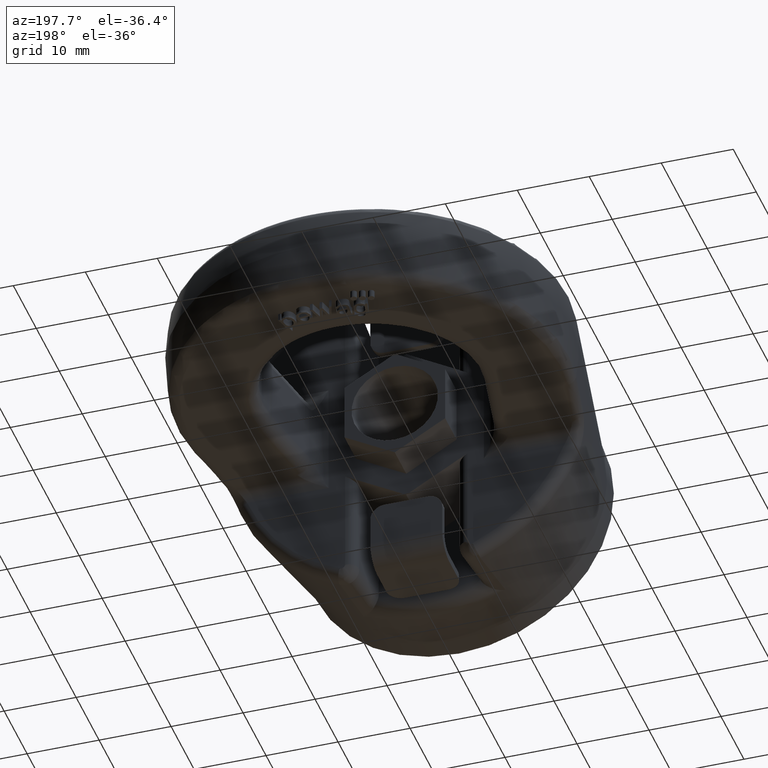
[diagram: clean part render]
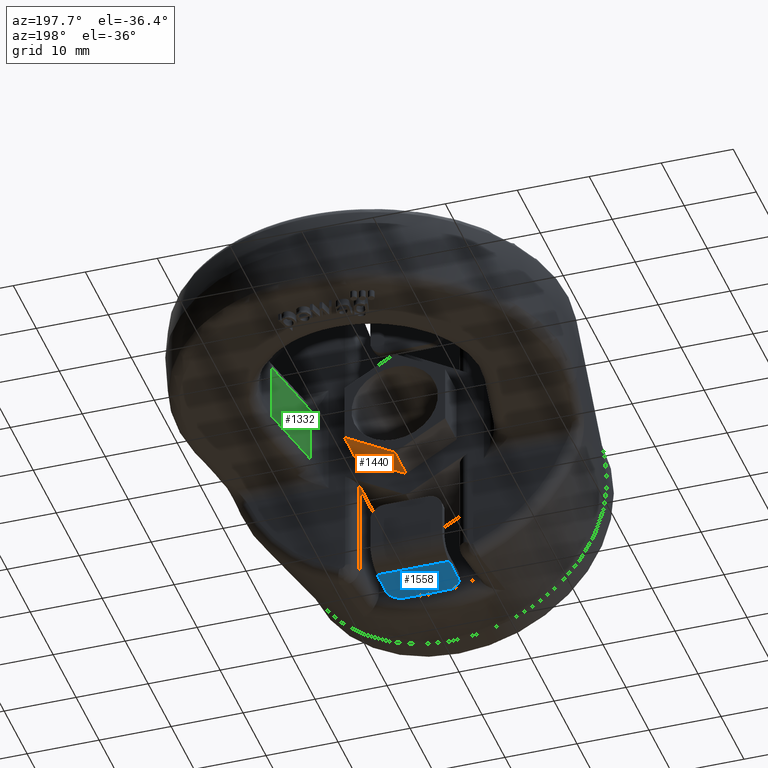
[diagram: same view with three faces highlighted in distinct colors, each labeled with its STEP entity id]
A machine part, auxiliary view with three faces highlighted in distinct colors.
Their STEP definitions:

[orange] entity #1440 — the highlighted planar face has unit normal (0.5, 0, -0.866).
#1207=FACE_OUTER_BOUND('',#1974,.T.);
#1440=ADVANCED_FACE('',(#1207),#1619,.T.);
#1619=PLANE('',#5243);
#1974=EDGE_LOOP('',(#3331,#3332,#3333,#3334));
#2156=LINE('',#6852,#2426);
#2167=LINE('',#6893,#2437);
#2177=LINE('',#6915,#2447);
#2269=LINE('',#8452,#2567);
#2426=VECTOR('',#5493,1.);
#2437=VECTOR('',#5522,1.);
#2447=VECTOR('',#5542,1.);
#2567=VECTOR('',#5854,1.);
#3331=ORIENTED_EDGE('',*,*,#4373,.F.);
#3332=ORIENTED_EDGE('',*,*,#4620,.T.);
#3333=ORIENTED_EDGE('',*,*,#4400,.F.);
#3334=ORIENTED_EDGE('',*,*,#4389,.F.);
#3985=VERTEX_POINT('',#6853);
#3986=VERTEX_POINT('',#6854);
#3999=VERTEX_POINT('',#6894);
#4005=VERTEX_POINT('',#6914);
#4373=EDGE_CURVE('',#3985,#3986,#2156,.T.);
#4389=EDGE_CURVE('',#3986,#3999,#2167,.T.);
#4400=EDGE_CURVE('',#3999,#4005,#2177,.T.);
#4620=EDGE_CURVE('',#3985,#4005,#2269,.T.);
#5243=AXIS2_PLACEMENT_3D('',#8453,#5855,#5856);
#5493=DIRECTION('',(0.866025403784438,0.,0.500000000000001));
#5522=DIRECTION('',(0.,1.,0.));
#5542=DIRECTION('',(-0.866025403784438,0.,-0.500000000000001));
#5854=DIRECTION('',(0.,1.,0.));
#5855=DIRECTION('',(0.500000000000001,0.,-0.866025403784438));
#5856=DIRECTION('',(-0.866025403784438,0.,-0.500000000000001));
#6852=CARTESIAN_POINT('',(7.00000000000001,23.,-4.04145188432736));
#6853=CARTESIAN_POINT('',(1.89375219623898E-14,23.,-8.08290376865475));
#6854=CARTESIAN_POINT('',(7.00000000000001,23.,-4.04145188432737));
#6893=CARTESIAN_POINT('',(7.00000000000001,0.5,-4.04145188432736));
#6894=CARTESIAN_POINT('',(7.00000000000001,28.,-4.04145188432736));
#6914=CARTESIAN_POINT('',(1.89375219623898E-14,28.,-8.08290376865475));
#6915=CARTESIAN_POINT('',(7.00000000000001,28.,-4.04145188432736));
#8452=CARTESIAN_POINT('',(1.89375219623898E-14,0.5,-8.08290376865475));
#8453=CARTESIAN_POINT('',(7.00000000000001,0.5,-4.04145188432736));

[blue] entity #1558 — the highlighted planar face has unit normal (-0, 0, 1).
#1318=FACE_OUTER_BOUND('',#2099,.T.);
#1558=ADVANCED_FACE('',(#1318),#1675,.F.);
#1675=PLANE('',#5370);
#1768=CIRCLE('',#5368,2.);
#1769=CIRCLE('',#5369,2.);
#2099=EDGE_LOOP('',(#3850,#3851,#3852,#3853,#3854,#3855));
#2350=LINE('',#9734,#2676);
#2358=LINE('',#9756,#2684);
#2362=LINE('',#9765,#2688);
#2373=LINE('',#9799,#2699);
#2676=VECTOR('',#6175,1.);
#2684=VECTOR('',#6189,1.);
#2688=VECTOR('',#6195,1.);
#2699=VECTOR('',#6234,1.);
#3850=ORIENTED_EDGE('',*,*,#4816,.F.);
#3851=ORIENTED_EDGE('',*,*,#4840,.T.);
#3852=ORIENTED_EDGE('',*,*,#4806,.F.);
#3853=ORIENTED_EDGE('',*,*,#4839,.T.);
#3854=ORIENTED_EDGE('',*,*,#4820,.T.);
#3855=ORIENTED_EDGE('',*,*,#4841,.T.);
#4232=VERTEX_POINT('',#9735);
#4233=VERTEX_POINT('',#9736);
#4242=VERTEX_POINT('',#9755);
#4243=VERTEX_POINT('',#9757);
#4246=VERTEX_POINT('',#9764);
#4247=VERTEX_POINT('',#9766);
#4806=EDGE_CURVE('',#4232,#4233,#2350,.T.);
#4816=EDGE_CURVE('',#4242,#4243,#2358,.T.);
#4820=EDGE_CURVE('',#4247,#4246,#2362,.T.);
#4839=EDGE_CURVE('',#4232,#4247,#2373,.T.);
#4840=EDGE_CURVE('',#4242,#4233,#1768,.T.);
#4841=EDGE_CURVE('',#4246,#4243,#1769,.T.);
#5368=AXIS2_PLACEMENT_3D('',#9801,#6237,#6238);
#5369=AXIS2_PLACEMENT_3D('',#9802,#6239,#6240);
#5370=AXIS2_PLACEMENT_3D('',#9803,#6241,#6242);
#6175=DIRECTION('',(0.,-1.,0.));
#6189=DIRECTION('',(1.,0.,2.34291072916505E-15));
#6195=DIRECTION('',(0.,-1.,0.));
#6234=DIRECTION('',(1.,0.,2.34291072916505E-15));
#6237=DIRECTION('',(2.34291072916505E-15,0.,-1.));
#6238=DIRECTION('',(1.,0.,1.73472347597681E-15));
#6239=DIRECTION('',(2.34291072916505E-15,0.,-1.));
#6240=DIRECTION('',(1.,0.,1.73472347597681E-15));
#6241=DIRECTION('',(-2.34291072916505E-15,0.,1.));
#6242=DIRECTION('',(1.,0.,2.34187669256869E-15));
#9734=CARTESIAN_POINT('',(-4.99999999999995,20.,-21.5));
#9735=CARTESIAN_POINT('',(-4.99999999999995,20.,-21.5));
#9736=CARTESIAN_POINT('',(-4.99999999999995,16.,-21.5));
#9755=CARTESIAN_POINT('',(-2.99999999999995,14.,-21.5));
#9756=CARTESIAN_POINT('',(-4.99999999999995,14.,-21.5));
#9757=CARTESIAN_POINT('',(3.00000000000005,14.,-21.5));
#9764=CARTESIAN_POINT('',(5.00000000000005,16.,-21.5));
#9765=CARTESIAN_POINT('',(5.00000000000005,20.,-21.5));
#9766=CARTESIAN_POINT('',(5.00000000000005,20.,-21.5));
#9799=CARTESIAN_POINT('',(-4.99999999999995,20.,-21.5));
#9801=CARTESIAN_POINT('',(-2.99999999999995,16.,-21.5));
#9802=CARTESIAN_POINT('',(3.00000000000005,16.,-21.5));
#9803=CARTESIAN_POINT('',(-4.99999999999995,20.,-21.5));

[green] entity #1332 — the highlighted planar face has unit normal (-0.9828, 0.1846, 0).
#1050=ELLIPSE('',#5135,4.06996773469739,4.);
#1051=ELLIPSE('',#5136,4.06996773469739,4.);
#1111=FACE_OUTER_BOUND('',#1847,.T.);
#1332=ADVANCED_FACE('',(#1111),#1569,.T.);
#1569=PLANE('',#5137);
#1847=EDGE_LOOP('',(#2831,#2832,#2833,#2834,#2835,#2836));
#2137=LINE('',#6717,#2407);
#2164=LINE('',#6877,#2434);
#2165=LINE('',#6882,#2435);
#2166=LINE('',#6883,#2436);
#2407=VECTOR('',#5454,1.);
#2434=VECTOR('',#5505,1.);
#2435=VECTOR('',#5508,1.);
#2436=VECTOR('',#5509,1.);
#2831=ORIENTED_EDGE('',*,*,#4382,.T.);
#2832=ORIENTED_EDGE('',*,*,#4383,.T.);
#2833=ORIENTED_EDGE('',*,*,#4384,.T.);
#2834=ORIENTED_EDGE('',*,*,#4342,.F.);
#2835=ORIENTED_EDGE('',*,*,#4385,.T.);
#2836=ORIENTED_EDGE('',*,*,#4386,.T.);
#3955=VERTEX_POINT('',#6718);
#3956=VERTEX_POINT('',#6719);
#3993=VERTEX_POINT('',#6878);
#3994=VERTEX_POINT('',#6879);
#3995=VERTEX_POINT('',#6881);
#3996=VERTEX_POINT('',#6884);
#4342=EDGE_CURVE('',#3955,#3956,#2137,.T.);
#4382=EDGE_CURVE('',#3993,#3994,#2164,.T.);
#4383=EDGE_CURVE('',#3994,#3995,#1050,.T.);
#4384=EDGE_CURVE('',#3995,#3956,#2165,.T.);
#4385=EDGE_CURVE('',#3955,#3996,#2166,.T.);
#4386=EDGE_CURVE('',#3996,#3993,#1051,.T.);
#5135=AXIS2_PLACEMENT_3D('',#6880,#5506,#5507);
#5136=AXIS2_PLACEMENT_3D('',#6885,#5510,#5511);
#5137=AXIS2_PLACEMENT_3D('',#6886,#5512,#5513);
#5454=DIRECTION('',(0.,0.,1.));
#5505=DIRECTION('',(0.,0.,1.));
#5506=DIRECTION('',(0.982808774108724,-0.184626416135144,0.));
#5507=DIRECTION('',(-0.184626416135144,-0.982808774108724,-4.6056620699712E-31));
#5508=DIRECTION('',(0.184626416135144,0.982808774108724,-1.31146265603261E-16));
#5509=DIRECTION('',(-0.184626416135144,-0.982808774108724,-5.63709476853581E-16));
#5510=DIRECTION('',(0.982808774108724,-0.184626416135144,2.30263322157688E-15));
#5511=DIRECTION('',(0.184626416135144,0.982808774108724,4.32563211250321E-16));
#5512=DIRECTION('',(-0.982808774108724,0.184626416135144,0.));
#5513=DIRECTION('',(-0.184626416135144,-0.982808774108724,0.));
#6717=CARTESIAN_POINT('',(14.7421316116309,35.2306037579728,30.25));
#6718=CARTESIAN_POINT('',(14.7421316116309,35.2306037579728,-3.99999999999997));
#6719=CARTESIAN_POINT('',(14.7421316116309,35.2306037579728,4.));
#6877=CARTESIAN_POINT('',(12.7508861268947,24.6307471677297,6.00000000000001));
#6878=CARTESIAN_POINT('',(12.7508861268947,24.6307471677297,-4.06876490356508));
#6879=CARTESIAN_POINT('',(12.7508861268947,24.6307471677297,4.06876490356511));
#6880=CARTESIAN_POINT('',(12.8896187651572,25.3692528322703,8.00000000000001));
#6881=CARTESIAN_POINT('',(12.8896187651572,25.3692528322703,4.00000000000001));
#6882=CARTESIAN_POINT('',(14.7421316116309,35.2306037579728,4.00000000000001));
#6883=CARTESIAN_POINT('',(12.820252446026,25.,-3.99999999999998));
#6884=CARTESIAN_POINT('',(12.8896187651572,25.3692528322703,-3.99999999999998));
#6885=CARTESIAN_POINT('',(12.8896187651572,25.3692528322703,-7.99999999999998));
#6886=CARTESIAN_POINT('',(12.4445406677045,23.,30.25));